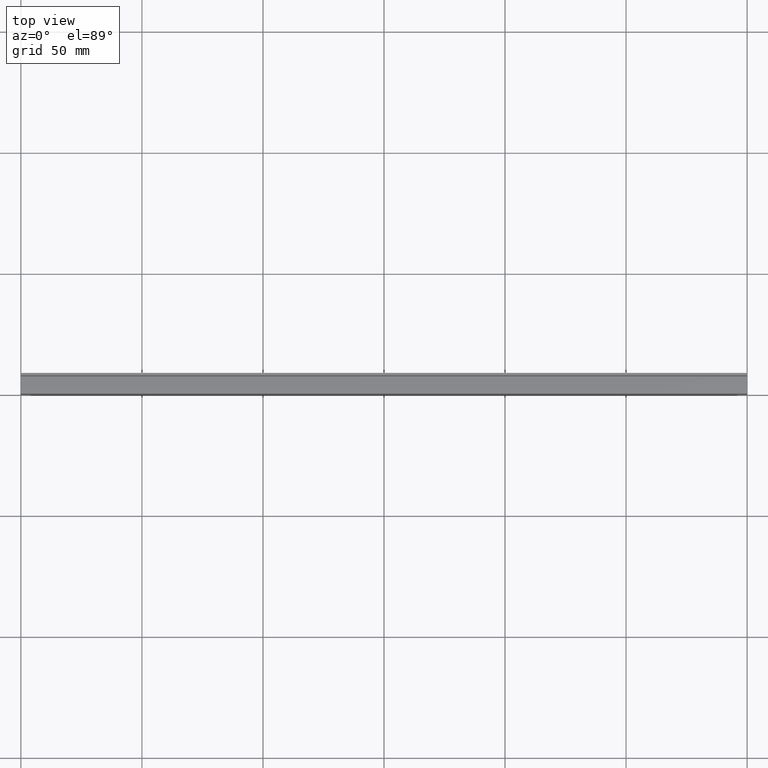
[diagram: clean part render]
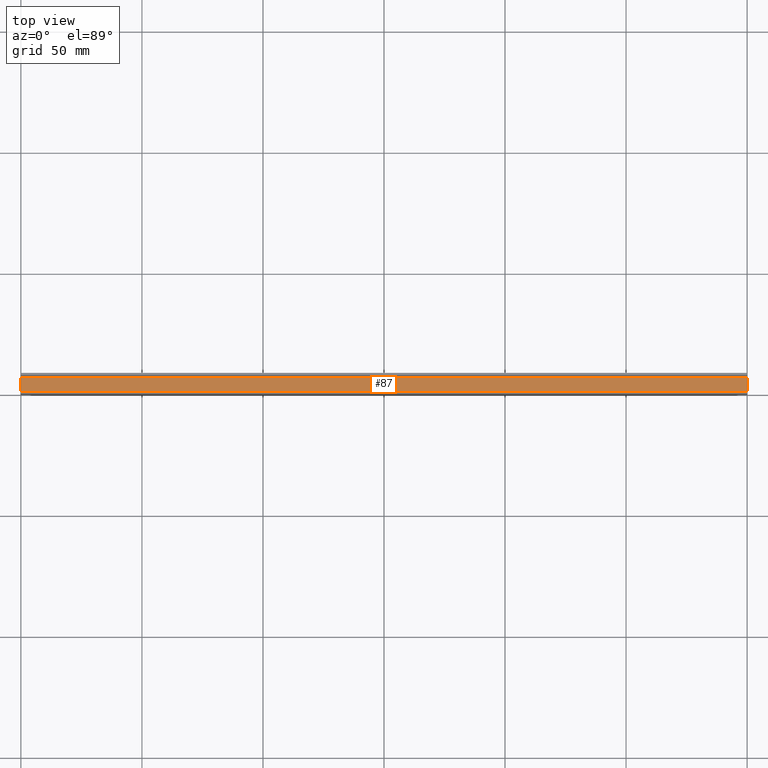
[diagram: same view with one face highlighted and labeled with its STEP entity id]
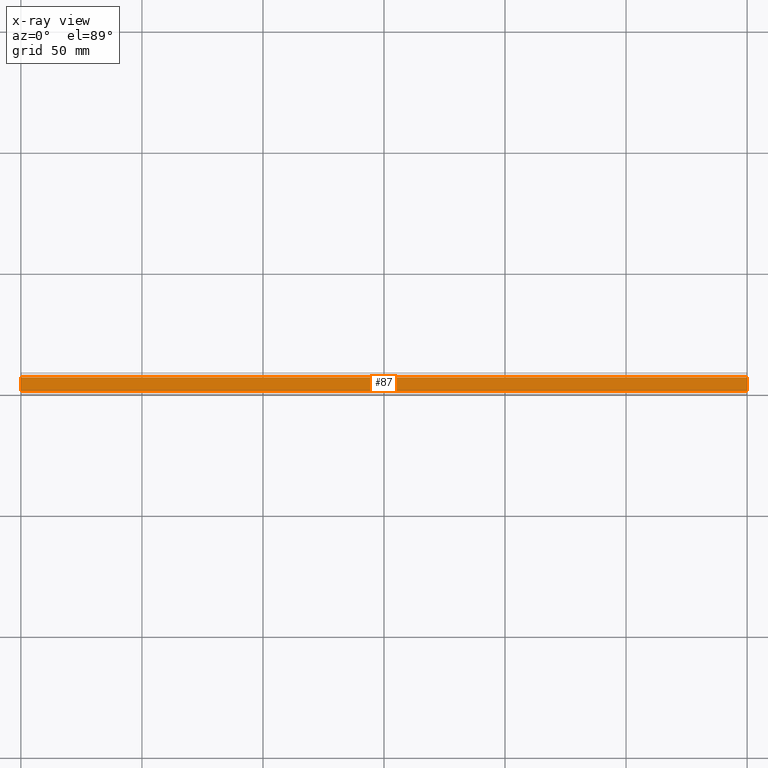
[diagram: x-ray of the same camera — body ghosted, the highlighted face saturated]
A machine part, top view. The second image highlights one B-rep face of the part: STEP entity #87.
The next image is the same camera in x-ray: the body ghosted, the highlighted face saturated — about 0% of this face is hidden behind the body in this view.
In plain terms, the highlighted planar face has unit normal (0, 0, -1).
Its self-contained STEP definition (entity closure, byte-faithful):
#11 = EDGE_CURVE ( 'NONE', #231, #229, #374, .T. ) ;
#15 = EDGE_CURVE ( 'NONE', #238, #234, #381, .T. ) ;
#17 = EDGE_CURVE ( 'NONE', #238, #231, #388, .T. ) ;
#18 = EDGE_CURVE ( 'NONE', #234, #229, #377, .T. ) ;
#87 = ADVANCED_FACE ( 'NONE', ( #626 ), #625, .F. ) ;
#114 = CARTESIAN_POINT ( 'NONE',  ( 0.0000000000000000000, 0.9999999999998900900, 27.29999999999993700 ) ) ;
#123 = CARTESIAN_POINT ( 'NONE',  ( 0.0000000000000000000, 6.731207326816646100, 27.29999999999988000 ) ) ;
#125 = CARTESIAN_POINT ( 'NONE',  ( 300.0000000000000000, 0.9999999999998900900, 27.29999999999993700 ) ) ;
#130 = CARTESIAN_POINT ( 'NONE',  ( 300.0000000000000000, 6.731207326816646100, 27.29999999999988000 ) ) ;
#193 = EDGE_LOOP ( 'NONE', ( #250, #293, #299, #239 ) ) ;
#229 = VERTEX_POINT ( 'NONE', #114 ) ;
#231 = VERTEX_POINT ( 'NONE', #125 ) ;
#234 = VERTEX_POINT ( 'NONE', #123 ) ;
#238 = VERTEX_POINT ( 'NONE', #130 ) ;
#239 = ORIENTED_EDGE ( 'NONE', *, *, #15, .T. ) ;
#250 = ORIENTED_EDGE ( 'NONE', *, *, #18, .T. ) ;
#293 = ORIENTED_EDGE ( 'NONE', *, *, #11, .F. ) ;
#299 = ORIENTED_EDGE ( 'NONE', *, *, #17, .F. ) ;
#374 = LINE ( 'NONE', #392, #673 ) ;
#375 = CARTESIAN_POINT ( 'NONE',  ( 300.0000000000000000, 6.731207326816646100, 27.29999999999988000 ) ) ;
#376 = CARTESIAN_POINT ( 'NONE',  ( 300.0000000000000000, 6.731207326816646100, 27.29999999999988000 ) ) ;
#377 = LINE ( 'NONE', #411, #689 ) ;
#381 = LINE ( 'NONE', #375, #674 ) ;
#385 = DIRECTION ( 'NONE',  ( 0.0000000000000000000, -1.000000000000000000, 0.0000000000000000000 ) ) ;
#388 = LINE ( 'NONE', #376, #729 ) ;
#392 = CARTESIAN_POINT ( 'NONE',  ( 300.0000000000000000, 0.9999999999998900900, 27.29999999999993700 ) ) ;
#394 = DIRECTION ( 'NONE',  ( 0.0000000000000000000, -1.000000000000000000, 0.0000000000000000000 ) ) ;
#402 = DIRECTION ( 'NONE',  ( -1.000000000000000000, -0.0000000000000000000, -0.0000000000000000000 ) ) ;
#408 = DIRECTION ( 'NONE',  ( -1.000000000000000000, -0.0000000000000000000, -0.0000000000000000000 ) ) ;
#411 = CARTESIAN_POINT ( 'NONE',  ( 0.0000000000000000000, 6.731207326816646100, 27.29999999999988000 ) ) ;
#620 = DIRECTION ( 'NONE',  ( 0.0000000000000000000, 0.0000000000000000000, -1.000000000000000000 ) ) ;
#625 = PLANE ( 'NONE',  #743 ) ;
#626 = FACE_OUTER_BOUND ( 'NONE', #193, .T. ) ;
#628 = DIRECTION ( 'NONE',  ( -1.000000000000000000, 0.0000000000000000000, -0.0000000000000000000 ) ) ;
#636 = CARTESIAN_POINT ( 'NONE',  ( 300.0000000000000000, 6.731207326816646100, 27.29999999999988000 ) ) ;
#673 = VECTOR ( 'NONE', #402, 1000.000000000000000 ) ;
#674 = VECTOR ( 'NONE', #408, 1000.000000000000000 ) ;
#689 = VECTOR ( 'NONE', #385, 1000.000000000000000 ) ;
#729 = VECTOR ( 'NONE', #394, 1000.000000000000000 ) ;
#743 = AXIS2_PLACEMENT_3D ( 'NONE', #636, #620, #628 ) ;